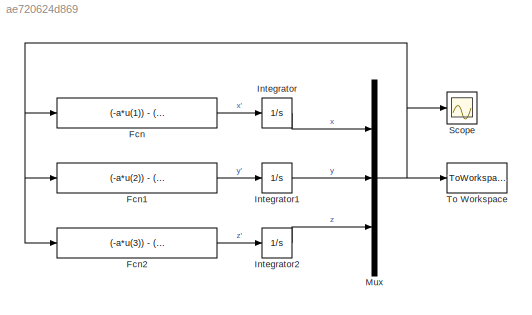
MODEL slx_ae720624d869
KIND model
BLOCK [Fcn] Fcn
  Expr = (-a*u(1)) - (4*(u(2)+u(3))) - (u(2)^2)
BLOCK [Fcn] Fcn1
  Expr = (-a*u(2)) - (4*(u(3)+u(1))) - (u(3)^2)
BLOCK [Fcn] Fcn2
  Expr = (-a*u(3)) - (4*(u(1)+u(2))) - (u(1)^2)
BLOCK [Integrator] Integrator
  InitialCondition = param.ic(1)
  Ports = [1, 1]
BLOCK [Integrator] Integrator1
  InitialCondition = param.ic(2)
  Ports = [1, 1]
BLOCK [Integrator] Integrator2
  InitialCondition = param.ic(3)
  Ports = [1, 1]
BLOCK [Mux] Mux
  DisplayOption = bar
  Inputs = 3
  Ports = [3, 1]
BLOCK [Scope] Scope
  Floating = off
  LegendLocations = 0.69187     0.61712     0.18981     0.20157
  LimitDataPoints = off
  NumInputPorts = 1
  Ports = [1]
  ShowLegends = on
BLOCK [ToWorkspace] To Workspace
  FixptAsFi = on
  MaxDataPoints = inf
  Ports = [1]
  SampleTime = -1
  Save2DSignal = 3-D array (concatenate along third dimension)
  SaveFormat = Timeseries
  VariableName = simout
LINE Fcn1:1 -> Integrator1:1
LINE Fcn2:1 -> Integrator2:1
LINE Fcn:1 -> Integrator:1
LINE Integrator1:1 -> Mux:2
LINE Integrator2:1 -> Mux:3
LINE Integrator:1 -> Mux:1
NET Mux:1 -> Fcn1:1, Fcn2:1, Fcn:1, Scope:1, To Workspace:1
note: NET lines group one-source signal fan-out (src -> all destinations, sorted); 1:1 wires keep LINE
